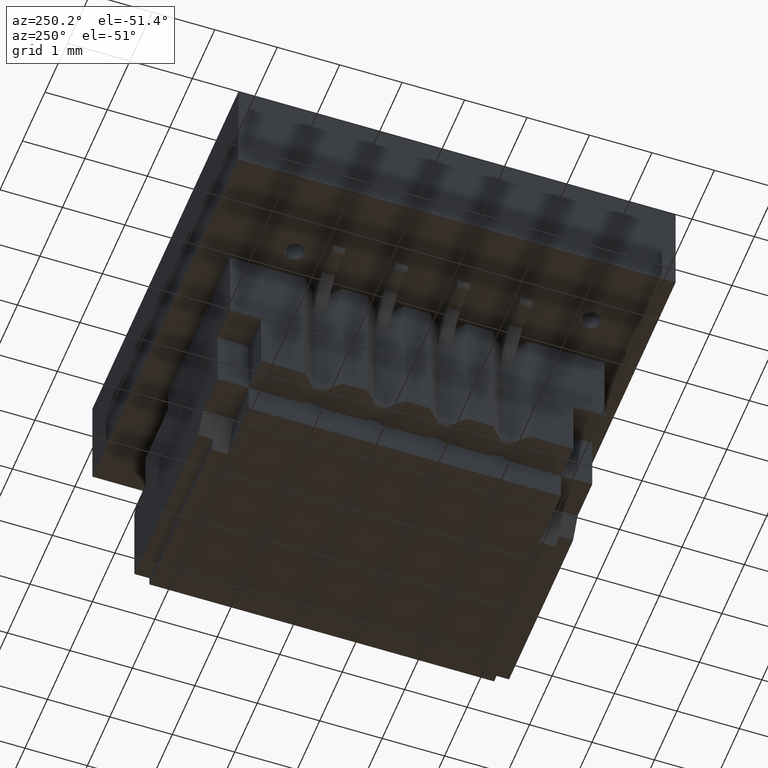
[diagram: clean part render]
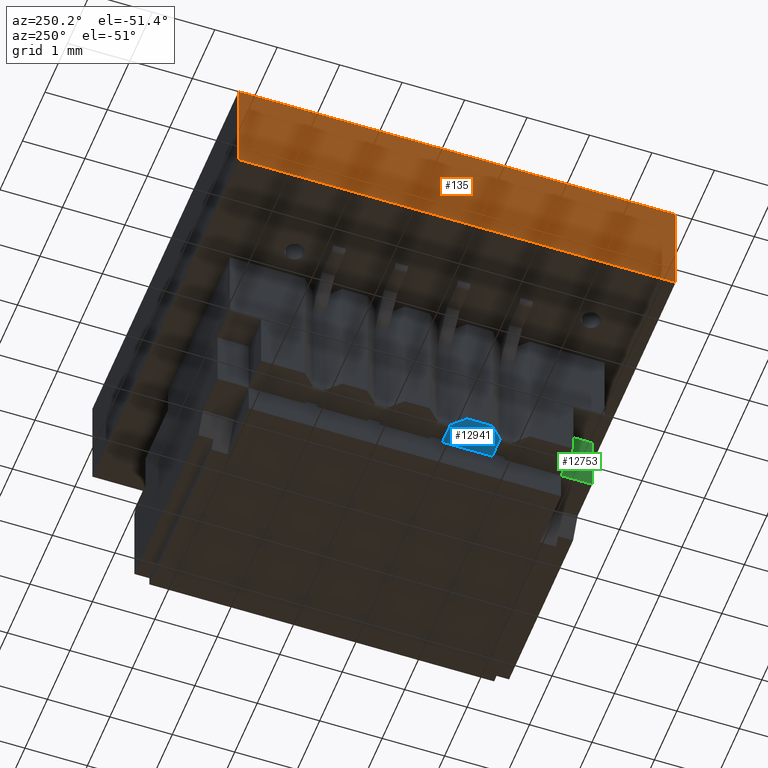
[diagram: same view with three faces highlighted in distinct colors, each labeled with its STEP entity id]
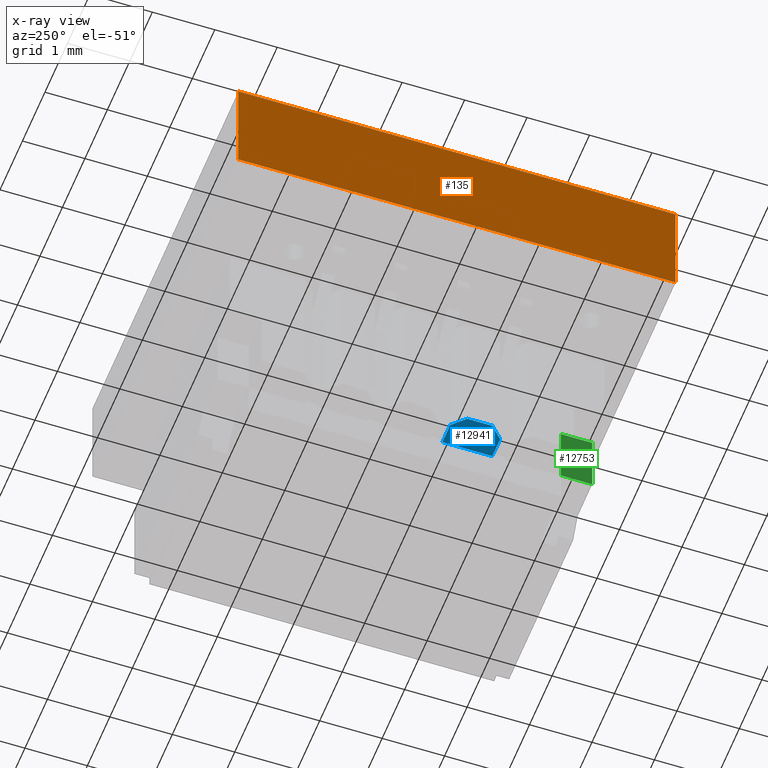
[diagram: x-ray of the same camera — body ghosted, the three highlighted faces saturated]
A machine part, auxiliary view with three faces highlighted in distinct colors.
The next image is the same camera in x-ray (body ghosted, the three faces saturated) — at least one of them is partly hidden behind the body in this view.
Their STEP definitions:

[orange] entity #135 — the highlighted planar face has unit normal (1, 0, 0).
#79 = VERTEX_POINT('',#80);
#80 = CARTESIAN_POINT('',(-0.5,0.E+000,0.82));
#86 = EDGE_CURVE('',#87,#79,#89,.T.);
#87 = VERTEX_POINT('',#88);
#88 = CARTESIAN_POINT('',(-0.5,0.E+000,-0.82));
#89 = LINE('',#90,#91);
#90 = CARTESIAN_POINT('',(-0.5,0.E+000,-0.82));
#91 = VECTOR('',#92,1.);
#92 = DIRECTION('',(0.E+000,0.E+000,1.));
#135 = ADVANCED_FACE('',(#136),#161,.F.);
#136 = FACE_BOUND('',#137,.F.);
#137 = EDGE_LOOP('',(#138,#139,#147,#155));
#138 = ORIENTED_EDGE('',*,*,#86,.T.);
#139 = ORIENTED_EDGE('',*,*,#140,.T.);
#140 = EDGE_CURVE('',#79,#141,#143,.T.);
#141 = VERTEX_POINT('',#142);
#142 = CARTESIAN_POINT('',(-0.5,-7.,0.82));
#143 = LINE('',#144,#145);
#144 = CARTESIAN_POINT('',(-0.5,0.E+000,0.82));
#145 = VECTOR('',#146,1.);
#146 = DIRECTION('',(0.E+000,-1.,0.E+000));
#147 = ORIENTED_EDGE('',*,*,#148,.F.);
#148 = EDGE_CURVE('',#149,#141,#151,.T.);
#149 = VERTEX_POINT('',#150);
#150 = CARTESIAN_POINT('',(-0.5,-7.,-0.82));
#151 = LINE('',#152,#153);
#152 = CARTESIAN_POINT('',(-0.5,-7.,-0.82));
#153 = VECTOR('',#154,1.);
#154 = DIRECTION('',(0.E+000,0.E+000,1.));
#155 = ORIENTED_EDGE('',*,*,#156,.F.);
#156 = EDGE_CURVE('',#87,#149,#157,.T.);
#157 = LINE('',#158,#159);
#158 = CARTESIAN_POINT('',(-0.5,0.E+000,-0.82));
#159 = VECTOR('',#160,1.);
#160 = DIRECTION('',(0.E+000,-1.,0.E+000));
#161 = PLANE('',#162);
#162 = AXIS2_PLACEMENT_3D('',#163,#164,#165);
#163 = CARTESIAN_POINT('',(-0.5,0.E+000,-0.82));
#164 = DIRECTION('',(1.,0.E+000,-0.E+000));
#165 = DIRECTION('',(0.E+000,-1.,0.E+000));

[blue] entity #12941 — the highlighted planar face has unit normal (-0, -0, 1).
#10531 = VERTEX_POINT('',#10532);
#10532 = CARTESIAN_POINT('',(1.4,2.755,0.195));
#10538 = EDGE_CURVE('',#10539,#10531,#10541,.T.);
#10539 = VERTEX_POINT('',#10540);
#10540 = CARTESIAN_POINT('',(0.6,2.755,0.195));
#10541 = LINE('',#10542,#10543);
#10542 = CARTESIAN_POINT('',(-4.,2.755,0.195));
#10543 = VECTOR('',#10544,1.);
#10544 = DIRECTION('',(1.,5.605193857299E-045,-6.982966722219E-015));
#12941 = ADVANCED_FACE('',(#12942),#12983,.F.);
#12942 = FACE_BOUND('',#12943,.T.);
#12943 = EDGE_LOOP('',(#12944,#12954,#12962,#12968,#12969,#12977));
#12944 = ORIENTED_EDGE('',*,*,#12945,.F.);
#12945 = EDGE_CURVE('',#12946,#12948,#12950,.T.);
#12946 = VERTEX_POINT('',#12947);
#12947 = CARTESIAN_POINT('',(0.8,2.755,-0.355));
#12948 = VERTEX_POINT('',#12949);
#12949 = CARTESIAN_POINT('',(1.2,2.755,-0.355));
#12950 = LINE('',#12951,#12952);
#12951 = CARTESIAN_POINT('',(-4.,2.755,-0.355));
#12952 = VECTOR('',#12953,1.);
#12953 = DIRECTION('',(1.,5.605193857299E-045,-6.982966722219E-015));
#12954 = ORIENTED_EDGE('',*,*,#12955,.T.);
#12955 = EDGE_CURVE('',#12946,#12956,#12958,.T.);
#12956 = VERTEX_POINT('',#12957);
#12957 = CARTESIAN_POINT('',(0.6,2.755,-0.155));
#12958 = LINE('',#12959,#12960);
#12959 = CARTESIAN_POINT('',(0.8,2.755,-0.355));
#12960 = VECTOR('',#12961,1.);
#12961 = DIRECTION('',(-0.707106781187,-3.963470586361E-045,
    0.707106781187));
#12962 = ORIENTED_EDGE('',*,*,#12963,.T.);
#12963 = EDGE_CURVE('',#12956,#10539,#12964,.T.);
#12964 = LINE('',#12965,#12966);
#12965 = CARTESIAN_POINT('',(0.6,2.755,0.195));
#12966 = VECTOR('',#12967,1.);
#12967 = DIRECTION('',(7.096596038087E-015,-0.E+000,1.));
#12968 = ORIENTED_EDGE('',*,*,#10538,.T.);
#12969 = ORIENTED_EDGE('',*,*,#12970,.F.);
#12970 = EDGE_CURVE('',#12971,#10531,#12973,.T.);
#12971 = VERTEX_POINT('',#12972);
#12972 = CARTESIAN_POINT('',(1.4,2.755,-0.155));
#12973 = LINE('',#12974,#12975);
#12974 = CARTESIAN_POINT('',(1.4,2.755,0.195));
#12975 = VECTOR('',#12976,1.);
#12976 = DIRECTION('',(7.096596038087E-015,-0.E+000,1.));
#12977 = ORIENTED_EDGE('',*,*,#12978,.T.);
#12978 = EDGE_CURVE('',#12971,#12948,#12979,.T.);
#12979 = LINE('',#12980,#12981);
#12980 = CARTESIAN_POINT('',(1.4,2.755,-0.155));
#12981 = VECTOR('',#12982,1.);
#12982 = DIRECTION('',(-0.707106781187,-3.963470586362E-045,
    -0.707106781187));
#12983 = PLANE('',#12984);
#12984 = AXIS2_PLACEMENT_3D('',#12985,#12986,#12987);
#12985 = CARTESIAN_POINT('',(-4.,2.755,-0.355));
#12986 = DIRECTION('',(5.605193857299E-045,-1.,-3.977779652042E-059));
#12987 = DIRECTION('',(1.,5.605193857299E-045,0.E+000));

[green] entity #12753 — the highlighted planar face has unit normal (1, -0, 0).
#10499 = VERTEX_POINT('',#10500);
#10500 = CARTESIAN_POINT('',(2.5,2.755,0.195));
#12719 = EDGE_CURVE('',#10499,#12720,#12722,.T.);
#12720 = VERTEX_POINT('',#12721);
#12721 = CARTESIAN_POINT('',(3.,2.755,0.195));
#12722 = LINE('',#12723,#12724);
#12723 = CARTESIAN_POINT('',(2.5,2.755,0.195));
#12724 = VECTOR('',#12725,1.);
#12725 = DIRECTION('',(1.,-2.438091212181E-029,-8.512554900196E-044));
#12753 = ADVANCED_FACE('',(#12754),#12779,.F.);
#12754 = FACE_BOUND('',#12755,.T.);
#12755 = EDGE_LOOP('',(#12756,#12766,#12772,#12773));
#12756 = ORIENTED_EDGE('',*,*,#12757,.T.);
#12757 = EDGE_CURVE('',#12758,#12760,#12762,.T.);
#12758 = VERTEX_POINT('',#12759);
#12759 = CARTESIAN_POINT('',(3.,1.755,0.195));
#12760 = VERTEX_POINT('',#12761);
#12761 = CARTESIAN_POINT('',(2.5,1.755,0.195));
#12762 = LINE('',#12763,#12764);
#12763 = CARTESIAN_POINT('',(2.5,1.755,0.195));
#12764 = VECTOR('',#12765,1.);
#12765 = DIRECTION('',(-1.,2.438091212181E-029,8.512554900196E-044));
#12766 = ORIENTED_EDGE('',*,*,#12767,.T.);
#12767 = EDGE_CURVE('',#12760,#10499,#12768,.T.);
#12768 = LINE('',#12769,#12770);
#12769 = CARTESIAN_POINT('',(2.5,2.755,0.195));
#12770 = VECTOR('',#12771,1.);
#12771 = DIRECTION('',(-5.605193857299E-045,1.,3.914088217711E-059));
#12772 = ORIENTED_EDGE('',*,*,#12719,.T.);
#12773 = ORIENTED_EDGE('',*,*,#12774,.T.);
#12774 = EDGE_CURVE('',#12720,#12758,#12775,.T.);
#12775 = LINE('',#12776,#12777);
#12776 = CARTESIAN_POINT('',(3.,3.255,0.195));
#12777 = VECTOR('',#12778,1.);
#12778 = DIRECTION('',(5.605193857299E-045,-1.,-3.914088217711E-059));
#12779 = PLANE('',#12780);
#12780 = AXIS2_PLACEMENT_3D('',#12781,#12782,#12783);
#12781 = CARTESIAN_POINT('',(2.5,2.755,0.195));
#12782 = DIRECTION('',(6.982966722219E-015,-3.599903578358E-015,1.));
#12783 = DIRECTION('',(1.,0.E+000,-6.982966722219E-015));